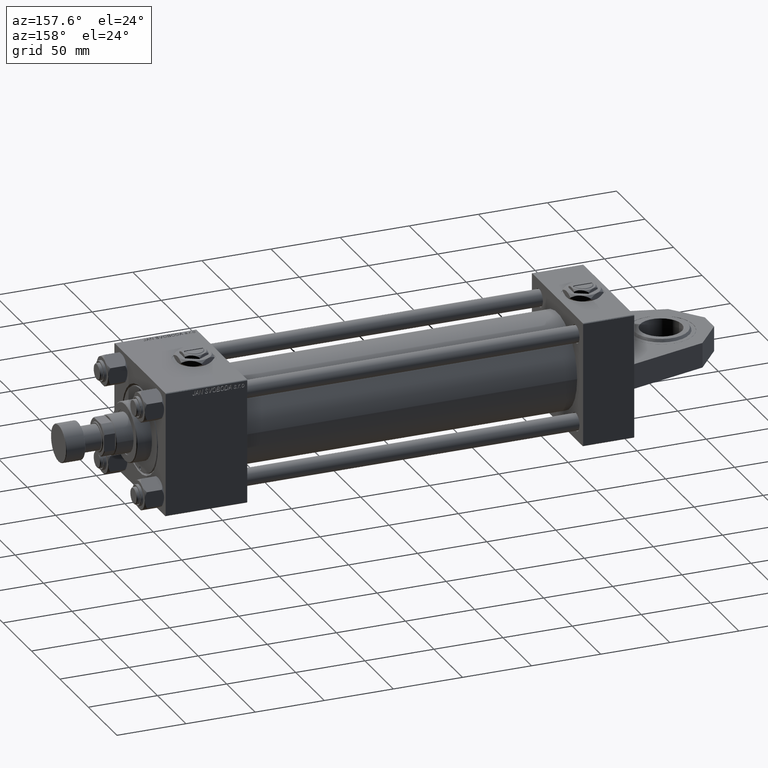
[diagram: clean part render]
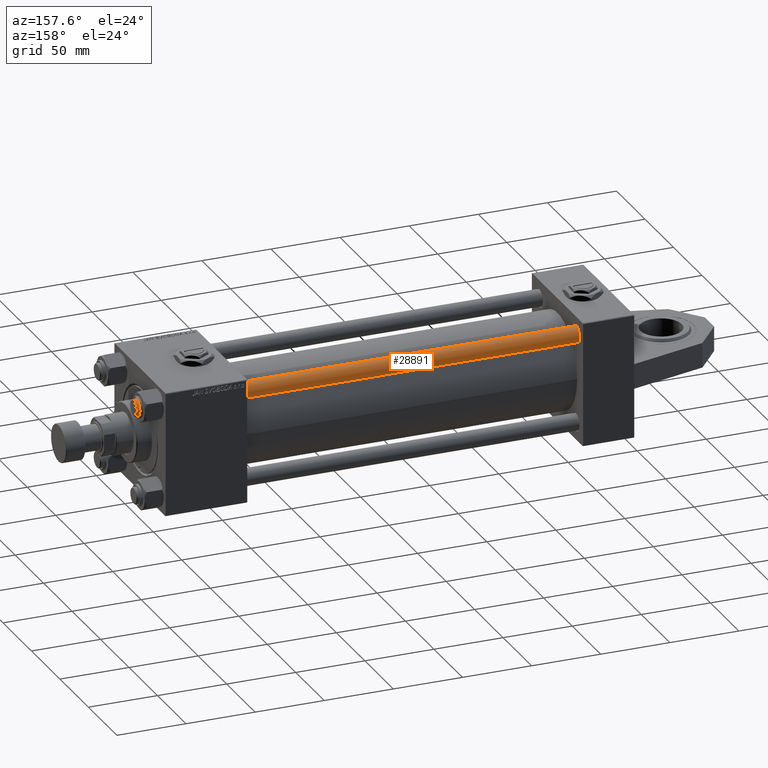
[diagram: same view with one face highlighted and labeled with its STEP entity id]
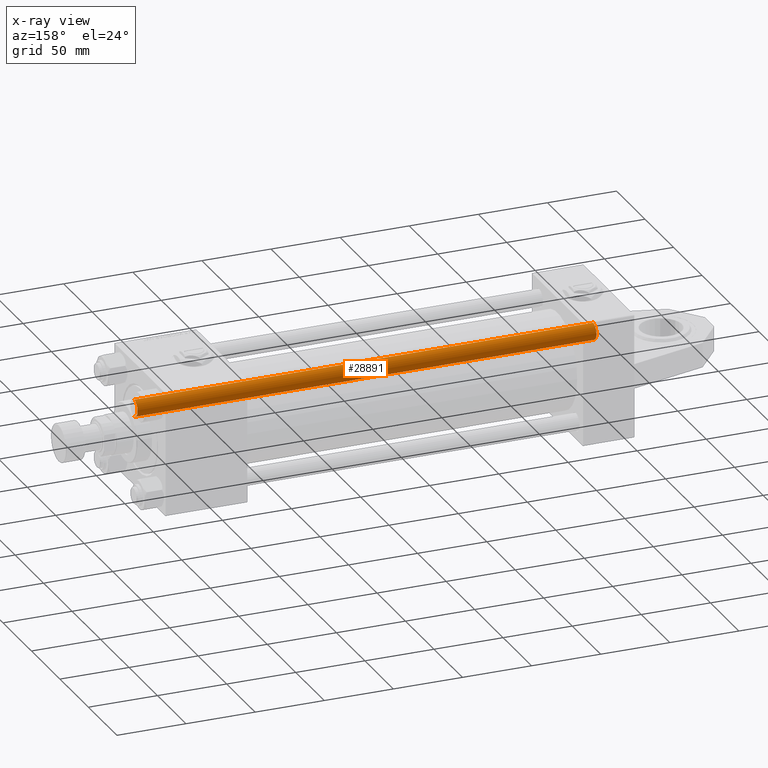
[diagram: x-ray of the same camera — body ghosted, the highlighted face saturated]
A machine part, auxiliary view. The second image highlights one B-rep face of the part: STEP entity #28891.
The next image is the same camera in x-ray: the body ghosted, the highlighted face saturated — about 0% of this face is hidden behind the body in this view.
In plain terms, the highlighted cylindrical surface (edge-blend (fillet) strip) has radius 6 mm, axis along (1, 0, 0).
Its self-contained STEP definition (entity closure, byte-faithful):
#378 = EDGE_CURVE ( 'NONE', #36771, #34777, #22553, .T. ) ;
#1260 = CARTESIAN_POINT ( 'NONE',  ( -6.000000000000000888, 0.000000000000000000, 332.5000000000001137 ) ) ;
#4178 = CIRCLE ( 'NONE', #24618, 6.000000000000000888 ) ;
#4713 = EDGE_CURVE ( 'NONE', #31068, #42590, #11791, .T. ) ;
#6118 = CARTESIAN_POINT ( 'NONE',  ( 6.000000000000000888, 7.347880794884120722E-16, 332.5000000000001137 ) ) ;
#8246 = EDGE_CURVE ( 'NONE', #31068, #36771, #4178, .T. ) ;
#9906 = DIRECTION ( 'NONE',  ( 0.000000000000000000, 0.000000000000000000, -1.000000000000000000 ) ) ;
#10164 = DIRECTION ( 'NONE',  ( -1.000000000000000000, 0.000000000000000000, 0.000000000000000000 ) ) ;
#10167 = CARTESIAN_POINT ( 'NONE',  ( 0.000000000000000000, 0.000000000000000000, 332.5000000000001137 ) ) ;
#10266 = CARTESIAN_POINT ( 'NONE',  ( 6.000000000000000888, 7.347880794884120722E-16, 333.0000000000000000 ) ) ;
#11791 = LINE ( 'NONE', #41142, #21382 ) ;
#11809 = CARTESIAN_POINT ( 'NONE',  ( 6.000000000000000888, 7.347880794884120722E-16, 0.5000000000000004441 ) ) ;
#12690 = VECTOR ( 'NONE', #50535, 1000.000000000000000 ) ;
#13031 = ORIENTED_EDGE ( 'NONE', *, *, #8246, .T. ) ;
#13117 = ORIENTED_EDGE ( 'NONE', *, *, #20221, .T. ) ;
#13370 = DIRECTION ( 'NONE',  ( -0.000000000000000000, -0.000000000000000000, -1.000000000000000000 ) ) ;
#20221 = EDGE_CURVE ( 'NONE', #34777, #42590, #46250, .T. ) ;
#20324 = DIRECTION ( 'NONE',  ( -0.000000000000000000, -0.000000000000000000, -1.000000000000000000 ) ) ;
#20464 = DIRECTION ( 'NONE',  ( -0.000000000000000000, -0.000000000000000000, 1.000000000000000000 ) ) ;
#21382 = VECTOR ( 'NONE', #20324, 1000.000000000000000 ) ;
#22298 = EDGE_LOOP ( 'NONE', ( #13031, #22542, #13117, #38485 ) ) ;
#22542 = ORIENTED_EDGE ( 'NONE', *, *, #378, .T. ) ;
#22553 = LINE ( 'NONE', #10266, #12690 ) ;
#24174 = CARTESIAN_POINT ( 'NONE',  ( -6.000000000000000888, 0.000000000000000000, 0.5000000000000004441 ) ) ;
#24216 = CARTESIAN_POINT ( 'NONE',  ( 0.000000000000000000, 0.000000000000000000, 0.5000000000000004441 ) ) ;
#24618 = AXIS2_PLACEMENT_3D ( 'NONE', #10167, #9906, #33663 ) ;
#27444 = FACE_OUTER_BOUND ( 'NONE', #22298, .T. ) ;
#28891 = ADVANCED_FACE ( 'NONE', ( #27444 ), #34464, .T. ) ;
#30195 = CARTESIAN_POINT ( 'NONE',  ( 0.000000000000000000, 0.000000000000000000, 333.0000000000000000 ) ) ;
#31068 = VERTEX_POINT ( 'NONE', #1260 ) ;
#31238 = AXIS2_PLACEMENT_3D ( 'NONE', #30195, #13370, #10164 ) ;
#32745 = DIRECTION ( 'NONE',  ( 1.000000000000000000, 0.000000000000000000, 0.000000000000000000 ) ) ;
#33663 = DIRECTION ( 'NONE',  ( 1.000000000000000000, 0.000000000000000000, 0.000000000000000000 ) ) ;
#34464 = CYLINDRICAL_SURFACE ( 'NONE', #31238, 6.000000000000000888 ) ;
#34777 = VERTEX_POINT ( 'NONE', #11809 ) ;
#36771 = VERTEX_POINT ( 'NONE', #6118 ) ;
#38485 = ORIENTED_EDGE ( 'NONE', *, *, #4713, .F. ) ;
#41142 = CARTESIAN_POINT ( 'NONE',  ( -6.000000000000000888, 0.000000000000000000, 333.0000000000000000 ) ) ;
#42590 = VERTEX_POINT ( 'NONE', #24174 ) ;
#46250 = CIRCLE ( 'NONE', #49627, 6.000000000000000888 ) ;
#49627 = AXIS2_PLACEMENT_3D ( 'NONE', #24216, #20464, #32745 ) ;
#50535 = DIRECTION ( 'NONE',  ( -0.000000000000000000, -0.000000000000000000, -1.000000000000000000 ) ) ;